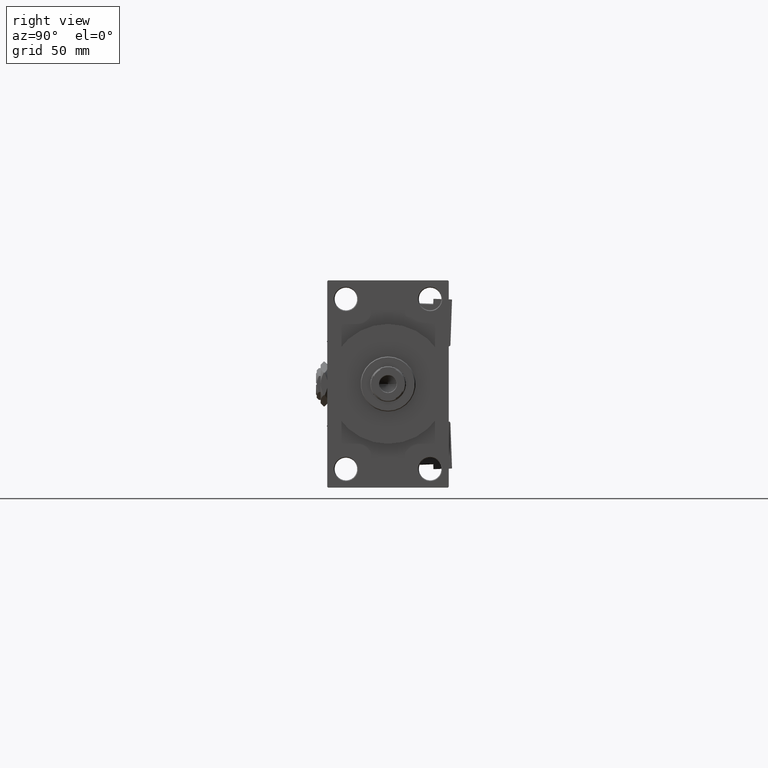
[diagram: clean part render]
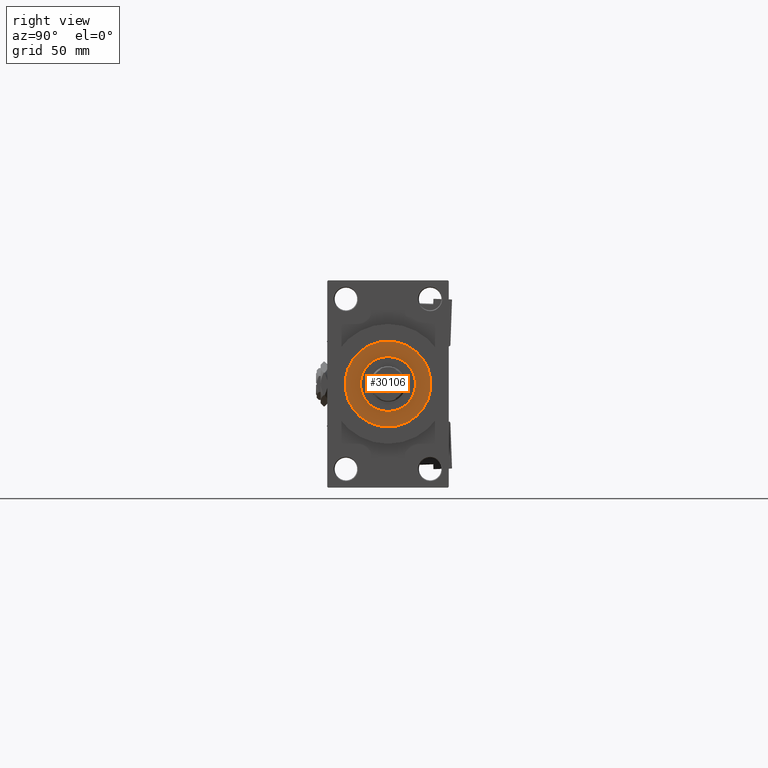
[diagram: same view with one face highlighted and labeled with its STEP entity id]
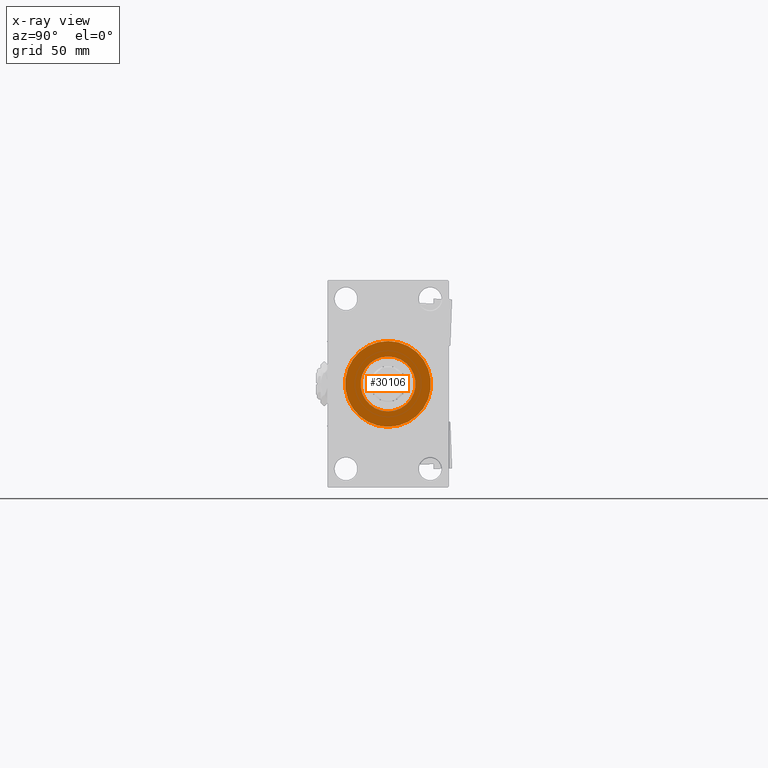
[diagram: x-ray of the same camera — body ghosted, the highlighted face saturated]
A machine part, right view. The second image highlights one B-rep face of the part: STEP entity #30106.
The next image is the same camera in x-ray: the body ghosted, the highlighted face saturated — about 0% of this face is hidden behind the body in this view.
In plain terms, the highlighted planar face has unit normal (1, -0, -0).
Its self-contained STEP definition (entity closure, byte-faithful):
#471 = DIRECTION ( 'NONE',  ( 1.000000000000000000, 0.000000000000000000, 0.000000000000000000 ) ) ;
#1180 = DIRECTION ( 'NONE',  ( 0.000000000000000000, 0.000000000000000000, 1.000000000000000000 ) ) ;
#1814 = EDGE_LOOP ( 'NONE', ( #25912, #7807 ) ) ;
#1921 = VERTEX_POINT ( 'NONE', #46260 ) ;
#4584 = DIRECTION ( 'NONE',  ( 1.000000000000000000, 0.000000000000000000, 0.000000000000000000 ) ) ;
#4985 = AXIS2_PLACEMENT_3D ( 'NONE', #25558, #10464, #26349 ) ;
#6112 = CIRCLE ( 'NONE', #35221, 26.50000000000000355 ) ;
#6428 = VERTEX_POINT ( 'NONE', #16233 ) ;
#7807 = ORIENTED_EDGE ( 'NONE', *, *, #8298, .T. ) ;
#8298 = EDGE_CURVE ( 'NONE', #6428, #46158, #6112, .T. ) ;
#8601 = DIRECTION ( 'NONE',  ( 0.000000000000000000, 0.000000000000000000, 1.000000000000000000 ) ) ;
#8863 = PLANE ( 'NONE',  #11774 ) ;
#9221 = EDGE_CURVE ( 'NONE', #34624, #1921, #18656, .T. ) ;
#10464 = DIRECTION ( 'NONE',  ( 0.000000000000000000, 0.000000000000000000, 1.000000000000000000 ) ) ;
#10798 = CIRCLE ( 'NONE', #4985, 26.50000000000000355 ) ;
#11774 = AXIS2_PLACEMENT_3D ( 'NONE', #16159, #8601, #24472 ) ;
#12512 = FACE_OUTER_BOUND ( 'NONE', #1814, .T. ) ;
#13243 = DIRECTION ( 'NONE',  ( 0.000000000000000000, 0.000000000000000000, 1.000000000000000000 ) ) ;
#16159 = CARTESIAN_POINT ( 'NONE',  ( 0.000000000000000000, 0.000000000000000000, 43.25999999999999801 ) ) ;
#16233 = CARTESIAN_POINT ( 'NONE',  ( 26.50000000000000355, 3.245314017740486554E-15, 43.25999999999999801 ) ) ;
#16674 = FACE_BOUND ( 'NONE', #33339, .T. ) ;
#18656 = CIRCLE ( 'NONE', #29455, 17.00000000000000000 ) ;
#24244 = CARTESIAN_POINT ( 'NONE',  ( -26.50000000000000355, 0.000000000000000000, 43.25999999999999801 ) ) ;
#24472 = DIRECTION ( 'NONE',  ( 1.000000000000000000, 0.000000000000000000, -0.000000000000000000 ) ) ;
#24838 = CIRCLE ( 'NONE', #45606, 17.00000000000000000 ) ;
#25558 = CARTESIAN_POINT ( 'NONE',  ( 0.000000000000000000, 0.000000000000000000, 43.25999999999999801 ) ) ;
#25912 = ORIENTED_EDGE ( 'NONE', *, *, #27881, .T. ) ;
#26349 = DIRECTION ( 'NONE',  ( 1.000000000000000000, 0.000000000000000000, 0.000000000000000000 ) ) ;
#27881 = EDGE_CURVE ( 'NONE', #46158, #6428, #10798, .T. ) ;
#29455 = AXIS2_PLACEMENT_3D ( 'NONE', #36611, #33464, #4584 ) ;
#30106 = ADVANCED_FACE ( 'NONE', ( #16674, #12512 ), #8863, .T. ) ;
#32955 = DIRECTION ( 'NONE',  ( 1.000000000000000000, 0.000000000000000000, 0.000000000000000000 ) ) ;
#33339 = EDGE_LOOP ( 'NONE', ( #47937, #35824 ) ) ;
#33464 = DIRECTION ( 'NONE',  ( 0.000000000000000000, 0.000000000000000000, 1.000000000000000000 ) ) ;
#34039 = EDGE_CURVE ( 'NONE', #1921, #34624, #24838, .T. ) ;
#34429 = CARTESIAN_POINT ( 'NONE',  ( -17.00000000000000000, 0.000000000000000000, 43.25999999999999801 ) ) ;
#34624 = VERTEX_POINT ( 'NONE', #34429 ) ;
#35221 = AXIS2_PLACEMENT_3D ( 'NONE', #37110, #1180, #32955 ) ;
#35824 = ORIENTED_EDGE ( 'NONE', *, *, #34039, .F. ) ;
#36611 = CARTESIAN_POINT ( 'NONE',  ( 0.000000000000000000, 0.000000000000000000, 43.25999999999999801 ) ) ;
#37110 = CARTESIAN_POINT ( 'NONE',  ( 0.000000000000000000, 0.000000000000000000, 43.25999999999999801 ) ) ;
#45606 = AXIS2_PLACEMENT_3D ( 'NONE', #48882, #13243, #471 ) ;
#46158 = VERTEX_POINT ( 'NONE', #24244 ) ;
#46260 = CARTESIAN_POINT ( 'NONE',  ( 17.00000000000000000, 2.081899558550500280E-15, 43.25999999999999801 ) ) ;
#47937 = ORIENTED_EDGE ( 'NONE', *, *, #9221, .F. ) ;
#48882 = CARTESIAN_POINT ( 'NONE',  ( 0.000000000000000000, 0.000000000000000000, 43.25999999999999801 ) ) ;